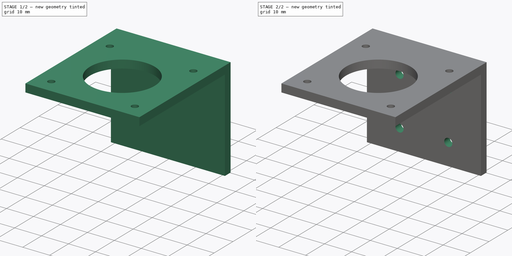
[diagram: build sequence overview — one tinted view per stage of 2, left to right]
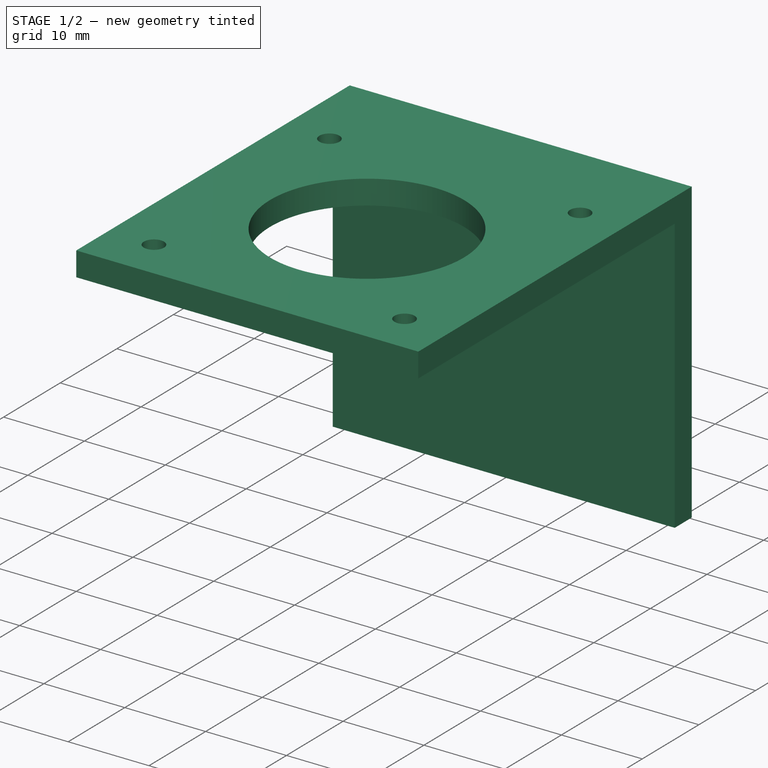
[diagram: stage 1 of 2 — iso view after this stage's code; geometry added in this stage tinted green]
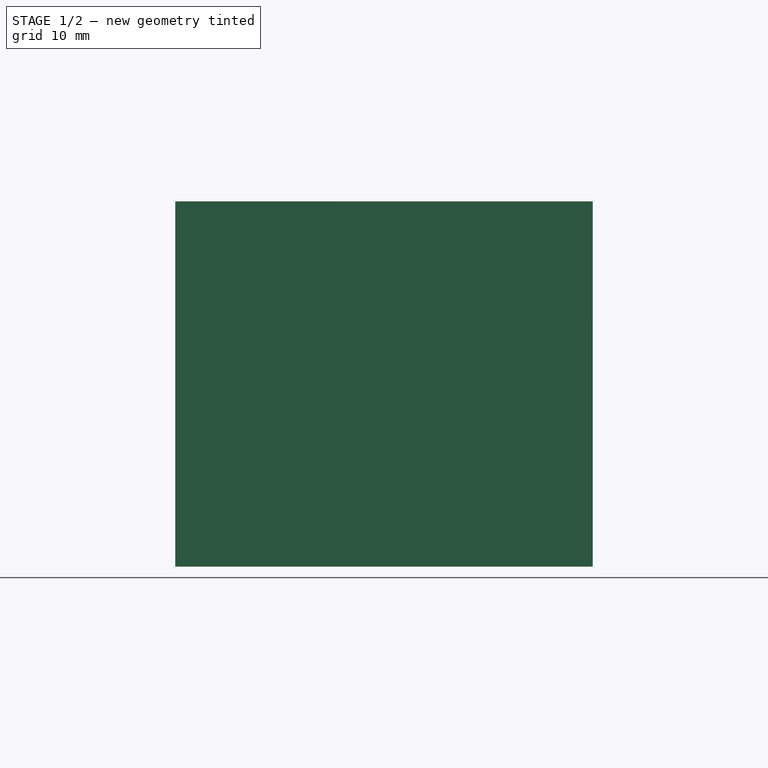
[diagram: stage 1 of 2 — front view after this stage's code; geometry added in this stage tinted green]
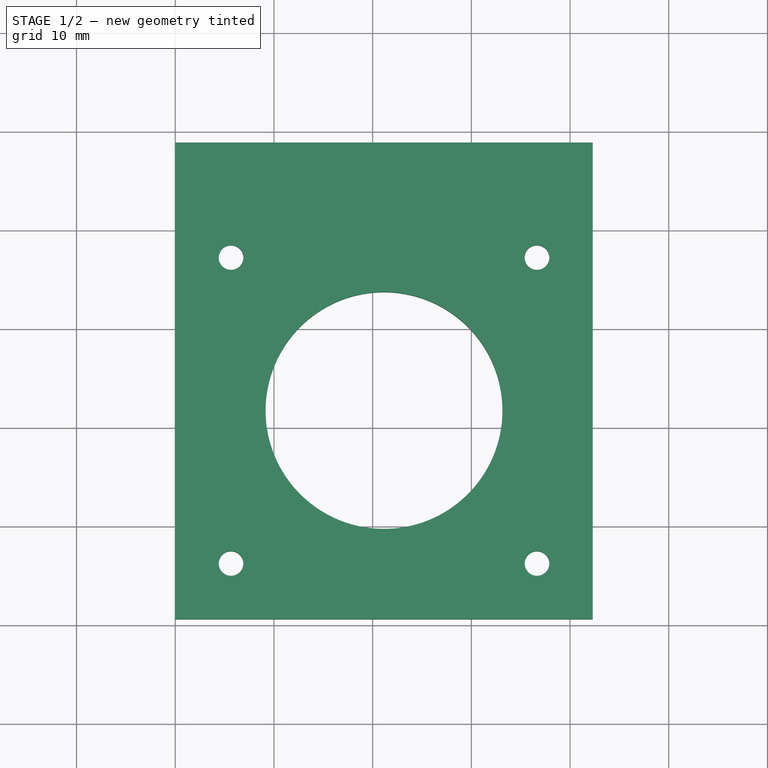
[diagram: stage 1 of 2 — top view after this stage's code; geometry added in this stage tinted green]
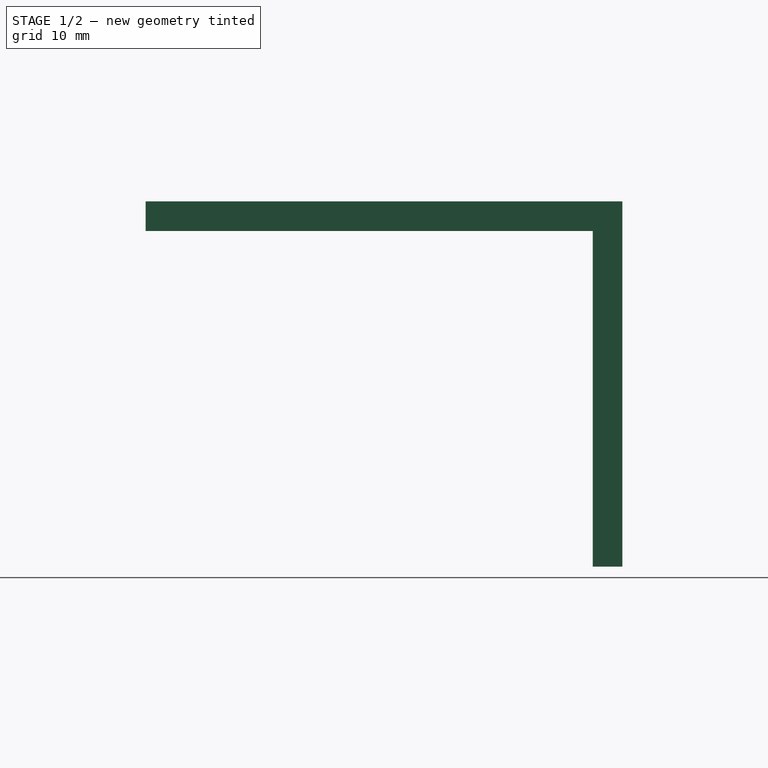
[diagram: stage 1 of 2 — right view after this stage's code; geometry added in this stage tinted green]
FCSTD DOCUMENT  (FreeCAD 0.16R6707 (Git))
Label: suport_moteur_34
License: All rights reserved
LicenseURL: http://en.wikipedia.org/wiki/All_rights_reserved
objects: Sketcher::SketchObject×3, PartDesign::Pad×2, PartDesign::Pocket×1
note: 9 computed .brp shape members not serialized (recipe doc carries the construction recipe); baked Part::Feature solids carry a one-line shape summary decoded from their .brp

FEATURE [Sketcher::SketchObject] Sketch
  sketch-geometry (14):
    g0: LineSegment StartX=0 StartY=0 StartZ=0 EndX=42.3 EndY=0 EndZ=0
    g1: LineSegment StartX=42.3 StartY=0 StartZ=0 EndX=42.3 EndY=48.3 EndZ=0
    g2: LineSegment StartX=42.3 StartY=48.3 StartZ=0 EndX=0 EndY=48.3 EndZ=0
    g3: LineSegment StartX=0 StartY=48.3 StartZ=0 EndX=0 EndY=0 EndZ=0
    g4: GeomPoint [constr] X=5.65 Y=5.65 Z=0
    g5: GeomPoint [constr] X=5.65 Y=36.65 Z=0
    g6: GeomPoint [constr] X=36.65 Y=36.65 Z=0
    g7: GeomPoint [constr] X=36.65 Y=5.65 Z=0
    g8: Circle CenterX=5.65 CenterY=36.65 CenterZ=0 NormalX=0 NormalY=0 NormalZ=1 Radius=1.25
    g9: Circle CenterX=36.65 CenterY=36.65 CenterZ=0 NormalX=0 NormalY=0 NormalZ=1 Radius=1.25
    g10: Circle CenterX=5.65 CenterY=5.65 CenterZ=0 NormalX=0 NormalY=0 NormalZ=1 Radius=1.25
    g11: Circle CenterX=36.65 CenterY=5.65 CenterZ=0 NormalX=0 NormalY=0 NormalZ=1 Radius=1.25
    g12: GeomPoint [constr] X=21.15 Y=21.15 Z=0
    g13: Circle CenterX=21.15 CenterY=21.15 CenterZ=0 NormalX=0 NormalY=0 NormalZ=1 Radius=12
  constraints (31):
    c: Coincident(g0,g1)
    c: Coincident(g1,g2)
    c: Coincident(g2,g3)
    c: Coincident(g3,g0)
    c: Horizontal(g0)
    c: Horizontal(g2)
    c: Vertical(g1)
    c: Vertical(g3)
    c: Coincident(g0,g-1)
    c: Distance(g0) = 42.3
    c: Distance(g3) = 48.3
    c: DistanceY(g5,g6) = 0
    c: DistanceX(g6,g7) = 0
    c: DistanceY(g7,g4) = 0
    c: DistanceX(g4,g5) = 0
    c: DistanceY(g4) = 5.65
    c: DistanceX(g6,g1) = 5.65
    c: Coincident(g8,g5)
    c: Coincident(g9,g6)
    c: Coincident(g10,g4)
    c: Coincident(g11,g7)
    c: Radius(g8) = 1.25
    c: Equal(g8,g9)
    c: Equal(g8,g10)
    c: Equal(g8,g11)
    c: DistanceY(g12) = 21.15
    c: DistanceX(g12) = 21.15
    c: Coincident(g13,g12)
    c: Radius(g13) = 12
    c: DistanceX(g4) = 5.65
    c: DistanceY(g7,g6) = 31
FEATURE [PartDesign::Pad] Pad
  Length = 3
  Length2 = 100
  Sketch = -> Sketch
  Type = 0
FEATURE [Sketcher::SketchObject] Sketch001
  Placement = pos=(0,0,0) rot=(1,0,0;3.14159rad)
  Support = -> Pad [Face10]
  sketch-geometry (4):
    g0: LineSegment StartX=0 StartY=-48.3 StartZ=0 EndX=42.3 EndY=-48.3 EndZ=0
    g1: LineSegment StartX=42.3 StartY=-48.3 StartZ=0 EndX=42.3 EndY=-45.3 EndZ=0
    g2: LineSegment StartX=42.3 StartY=-45.3 StartZ=0 EndX=0 EndY=-45.3 EndZ=0
    g3: LineSegment StartX=0 StartY=-45.3 StartZ=0 EndX=0 EndY=-48.3 EndZ=0
  constraints (12):
    c: Coincident(g0,g1)
    c: Coincident(g1,g2)
    c: Coincident(g2,g3)
    c: Coincident(g3,g0)
    c: Horizontal(g0)
    c: Horizontal(g2)
    c: Vertical(g1)
    c: Vertical(g3)
    c: PointOnObject(g0,g-2)
    c: DistanceY(g0) = -48.3
    c: Distance(g3) = 3
    c: Distance(g2) = 42.3
FEATURE [PartDesign::Pad] Pad001
  Length = 34
  Length2 = 100
  Sketch = -> Sketch001
  Type = 0
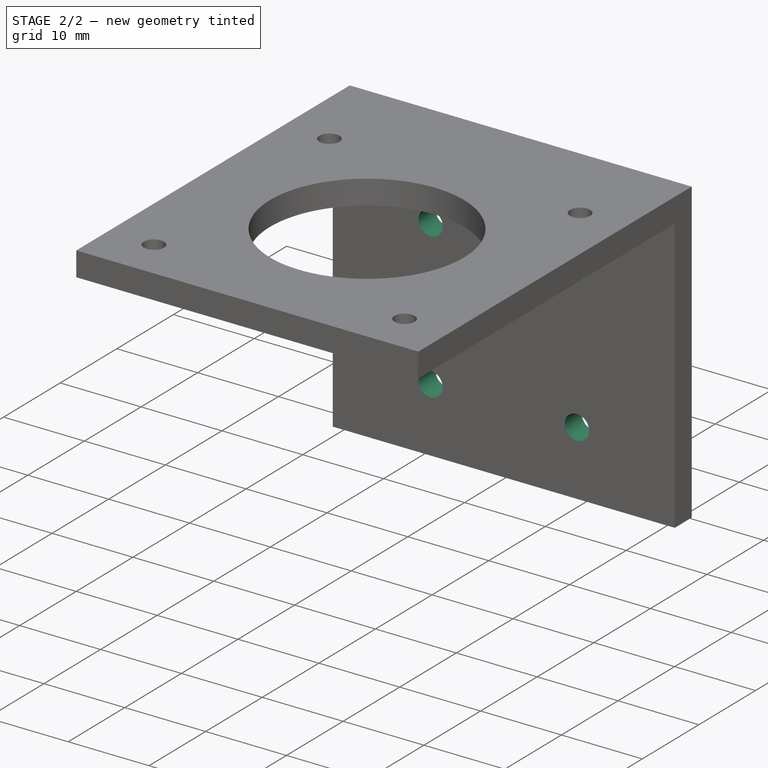
[diagram: stage 2 of 2 — iso view after this stage's code; geometry added in this stage tinted green]
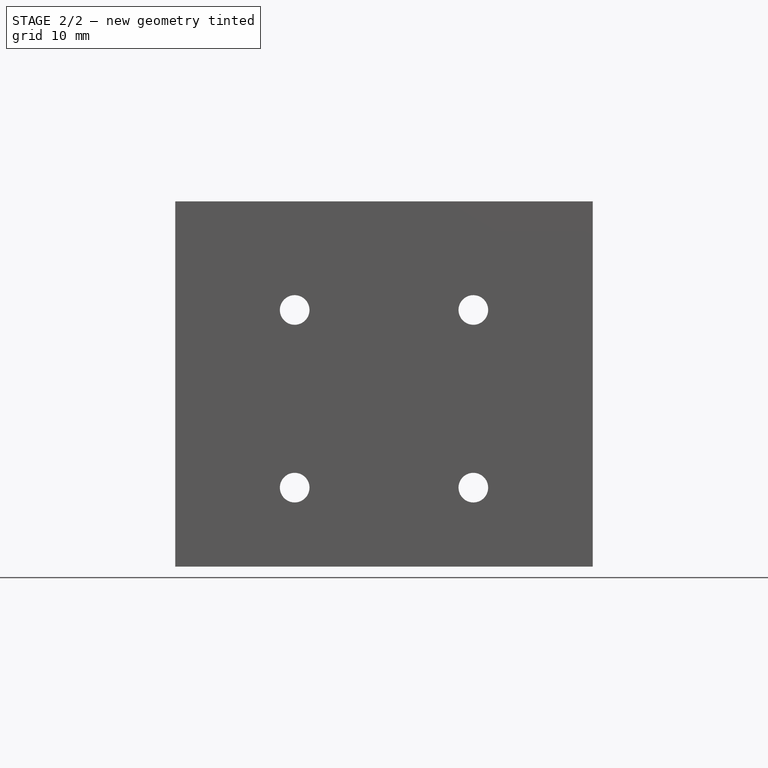
[diagram: stage 2 of 2 — front view after this stage's code; geometry added in this stage tinted green]
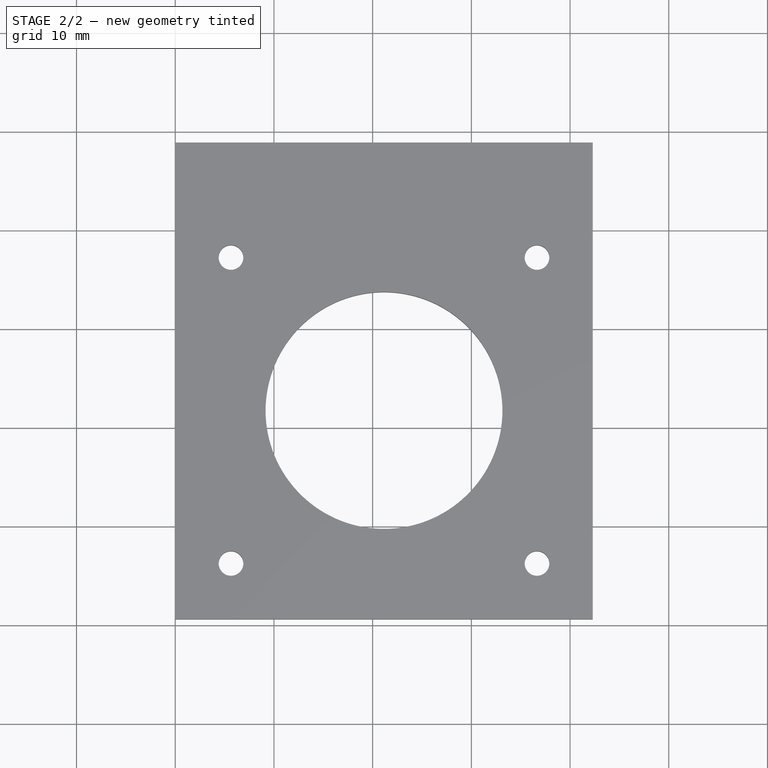
[diagram: stage 2 of 2 — top view after this stage's code; geometry added in this stage tinted green]
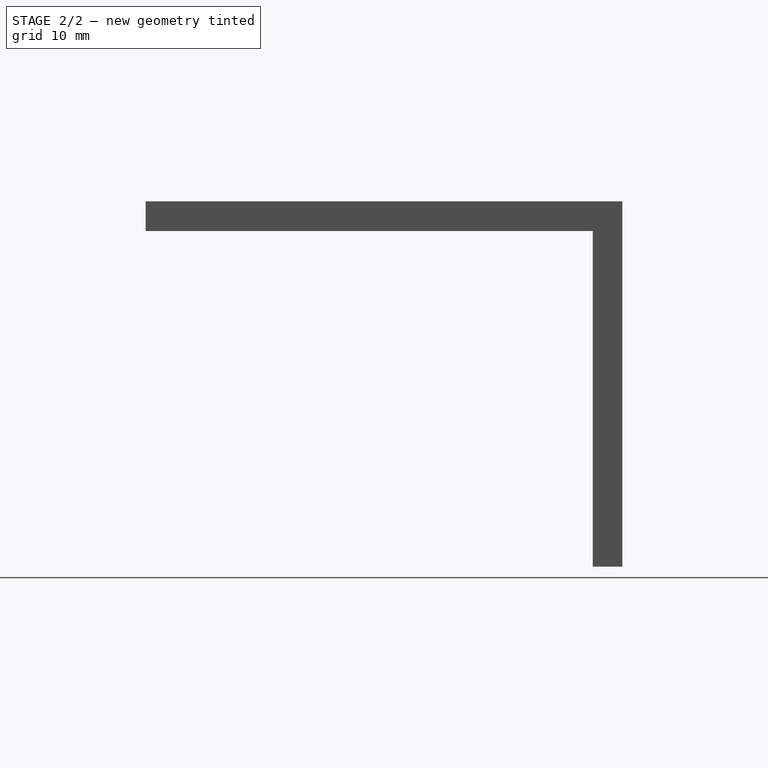
[diagram: stage 2 of 2 — right view after this stage's code; geometry added in this stage tinted green]
FEATURE [Sketcher::SketchObject] Sketch002
  Placement = pos=(0,48.3,0) rot=(0,0.707107,0.707107;3.14159rad)
  Support = -> Pad001 [Face15]
  sketch-geometry (4):
    g0: Circle CenterX=-30.2 CenterY=-8 CenterZ=0 NormalX=0 NormalY=0 NormalZ=1 Radius=1.5
    g1: Circle CenterX=-12.1 CenterY=-8 CenterZ=0 NormalX=0 NormalY=0 NormalZ=1 Radius=1.5
    g2: Circle CenterX=-30.2 CenterY=-26 CenterZ=0 NormalX=0 NormalY=0 NormalZ=1 Radius=1.5
    g3: Circle CenterX=-12.1 CenterY=-26 CenterZ=0 NormalX=0 NormalY=0 NormalZ=1 Radius=1.5
  constraints (12):
    c: DistanceY(g0) = -8
    c: DistanceY(g2,g0) = 18
    c: DistanceX(g0,g1) = 18.1
    c: DistanceX(g1,g-1) = 12.1
    c: DistanceY(g0,g1) = 0
    c: DistanceX(g2,g0) = 0
    c: DistanceY(g2,g3) = 0
    c: DistanceX(g1,g3) = 0
    c: Radius(g0) = 1.5
    c: Equal(g0,g1)
    c: Equal(g0,g2)
    c: Equal(g0,g3)
FEATURE [PartDesign::Pocket] Pocket
  Length = 5
  Sketch = -> Sketch002
  Type = 1
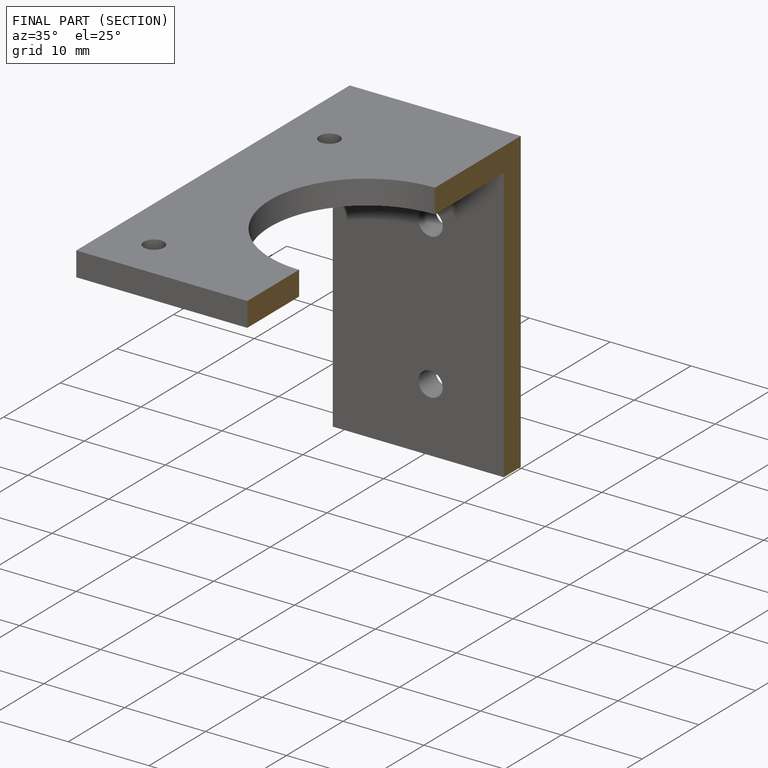
[diagram: finished part — half-section view (interior)]
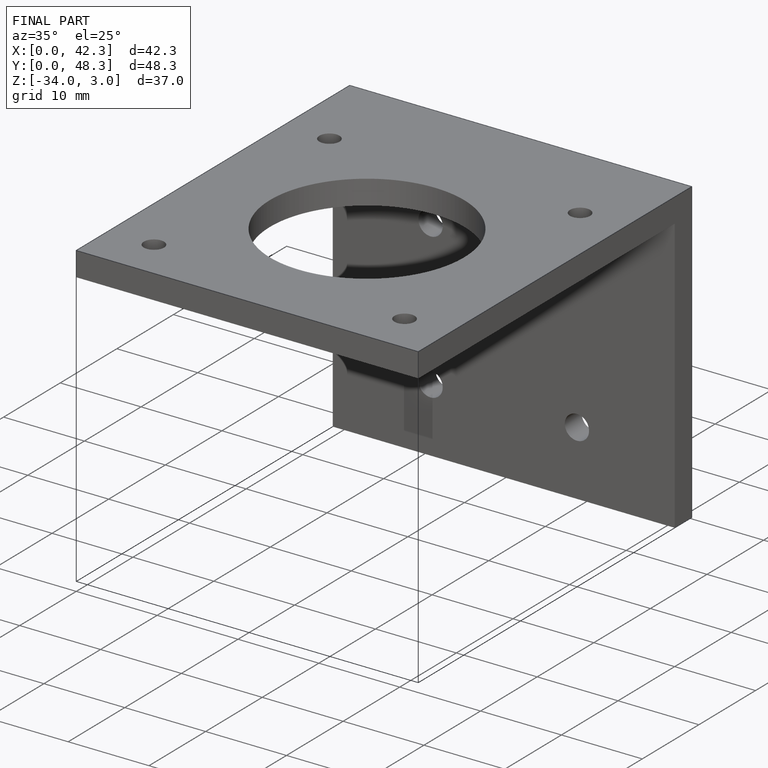
[diagram: finished part — iso view with bounding-box wireframe]
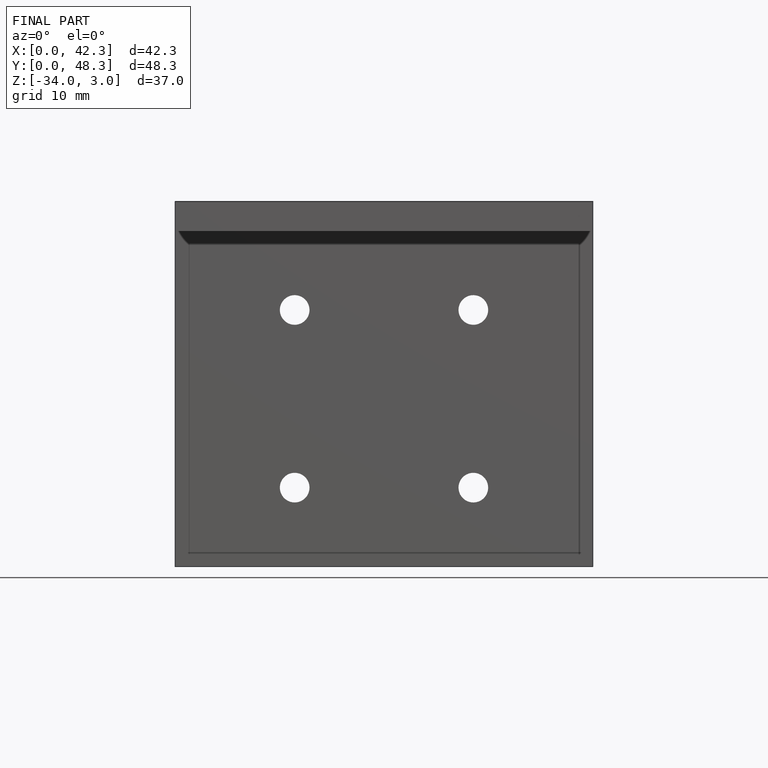
[diagram: finished part — front view with bounding-box wireframe]
